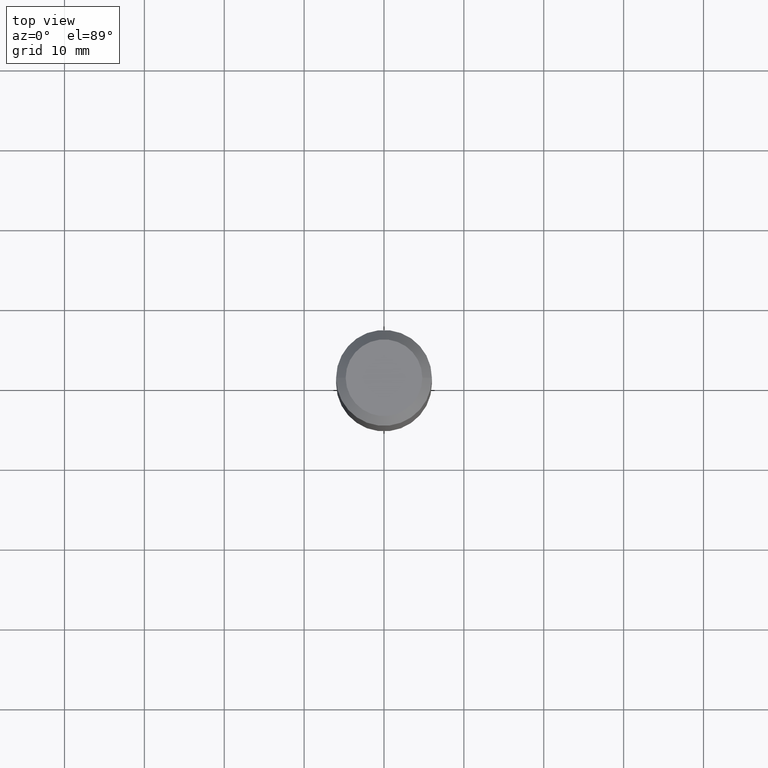
[diagram: clean part render]
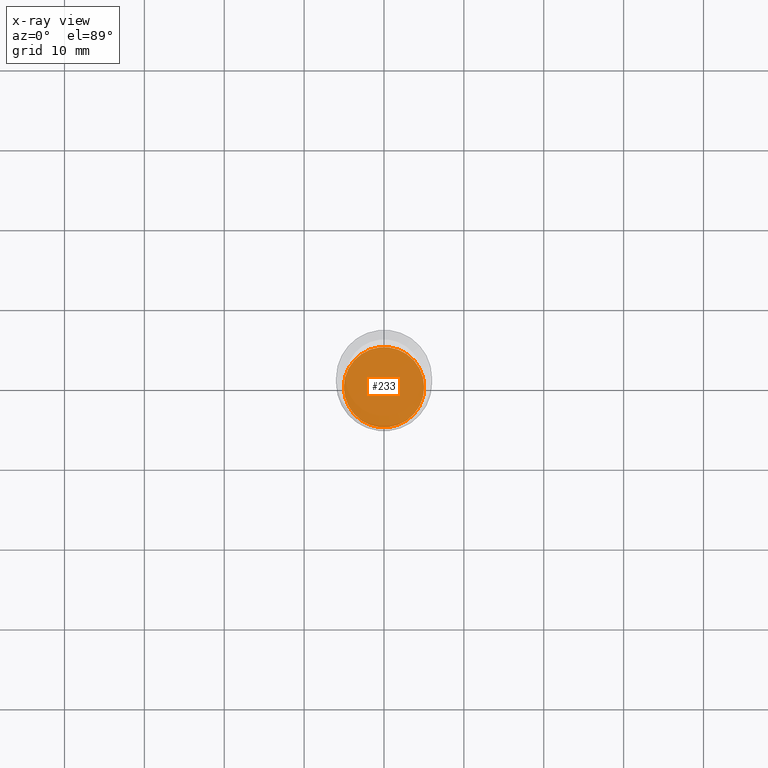
[diagram: x-ray — body ghosted, one internal face saturated and labeled with its STEP entity id]
A machine part, top view, then the same camera in x-ray: the body is ghosted and one INTERNAL B-rep face — a face not visible from any outside direction — is saturated and labeled: STEP entity #233.
In plain terms, the highlighted planar face has unit normal (-0, 0, 1).
Its self-contained STEP definition (entity closure, byte-faithful):
#20 = ORIENTED_EDGE ( 'NONE', *, *, #194, .F. ) ;
#39 = CARTESIAN_POINT ( 'NONE',  ( 6.657299731077797444E-29, -9.504859648732694617E-15, -2.722300000000000164 ) ) ;
#67 = CARTESIAN_POINT ( 'NONE',  ( 6.657299731077797444E-29, -9.504859648732694617E-15, -2.722300000000000164 ) ) ;
#68 = AXIS2_PLACEMENT_3D ( 'NONE', #170, #224, #290 ) ;
#69 = FACE_OUTER_BOUND ( 'NONE', #366, .T. ) ;
#77 = PLANE ( 'NONE',  #244 ) ;
#137 = EDGE_CURVE ( 'NONE', #160, #504, #158, .T. ) ;
#158 = CIRCLE ( 'NONE', #68, 0.1980000000000000093 ) ;
#160 = VERTEX_POINT ( 'NONE', #399 ) ;
#164 = DIRECTION ( 'NONE',  ( 1.000000000000000000, -6.982962677686265922E-15, 4.876176775795935793E-29 ) ) ;
#170 = CARTESIAN_POINT ( 'NONE',  ( 6.657299731077797444E-29, -9.504859648732694617E-15, -2.722300000000000164 ) ) ;
#194 = EDGE_CURVE ( 'NONE', #504, #160, #345, .T. ) ;
#208 = DIRECTION ( 'NONE',  ( 1.000000000000000000, -6.982962677686264344E-15, 0.000000000000000000 ) ) ;
#224 = DIRECTION ( 'NONE',  ( -2.445468806185136597E-29, 3.491481338843145583E-15, 1.000000000000000000 ) ) ;
#229 = ORIENTED_EDGE ( 'NONE', *, *, #137, .F. ) ;
#233 = ADVANCED_FACE ( 'NONE', ( #69 ), #77, .F. ) ;
#244 = AXIS2_PLACEMENT_3D ( 'NONE', #67, #389, #164 ) ;
#290 = DIRECTION ( 'NONE',  ( 1.000000000000000000, -6.982962677686264344E-15, 0.000000000000000000 ) ) ;
#345 = CIRCLE ( 'NONE', #356, 0.1980000000000000093 ) ;
#356 = AXIS2_PLACEMENT_3D ( 'NONE', #39, #362, #208 ) ;
#362 = DIRECTION ( 'NONE',  ( -2.445468806185136597E-29, 3.491481338843145583E-15, 1.000000000000000000 ) ) ;
#366 = EDGE_LOOP ( 'NONE', ( #229, #20 ) ) ;
#389 = DIRECTION ( 'NONE',  ( -2.438088387897960049E-29, 3.491481338843145188E-15, 1.000000000000000000 ) ) ;
#398 = CARTESIAN_POINT ( 'NONE',  ( -0.1980000000000000093, -8.095335804753583010E-15, -2.722300000000000164 ) ) ;
#399 = CARTESIAN_POINT ( 'NONE',  ( 0.1980000000000000093, -1.088748625891457435E-14, -2.722300000000000164 ) ) ;
#504 = VERTEX_POINT ( 'NONE', #398 ) ;